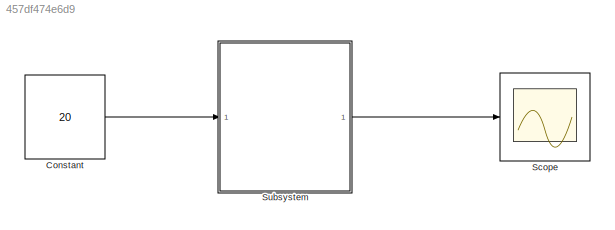
MODEL slx_457df474e6d9
KIND model
CONFIG AbsTol = auto
CONFIG EnableMultiTasking = off
CONFIG FixedStep = auto
CONFIG MaxStep = auto
CONFIG MinStep = auto
CONFIG RelTol = 1e-3
CONFIG SampleTimeConstraint = Unconstrained
CONFIG SolverName = VariableStepAuto
CONFIG StartTime = 0.0
CONFIG StopTime = 10.0
BLOCK [Constant] Constant
  Value = 20
BLOCK [Scope] Scope
  ActiveDisplayYMaximum = 594.46208333333345
  ActiveDisplayYMinimum = -73.45875
  ContainerLayout = {"WindowBounds":[1195,1371,338,757]}
  Floating = off
  GraphicalSettings = {"Style":{"BackgroundColor":[0.12941176470588237,0.12941176470588237,0.12941176470588237],"AxesColor":[0.07058823529411765,0.07058823529411765,0.07058823529411765],"LabelsColor":[0.8509803921568627,0.8509803921568627,0.8509803921568627],"PreserveColors":false,"Visible":[true,true,true,true,true,true,true,true],"LineStyle":["-","-","-","-","-","-","-","-"],"LineWidth":[1.5,1.5,1.5,1.5,1.5,1.5,1.5,1...<+2780ch>
  MultipleDisplayCache = [{"MaxYLimMag":594.46208333333345,"MaxYLimReal":594.46208333333345,"MinYLimMag":0,"MinYLimReal":-73.45875,"PlotAsMagnitudePhase":false,"ShowGrid":true,"ShowLegend":false,"Title":"%<SignalLabel>","YLabel":""}]
  NumInputPorts = 1
  Visible = on
  WasSavedAsWebScope = on
  WindowPosition = [1195.000000,3.000000,340.000000,759.000000,]
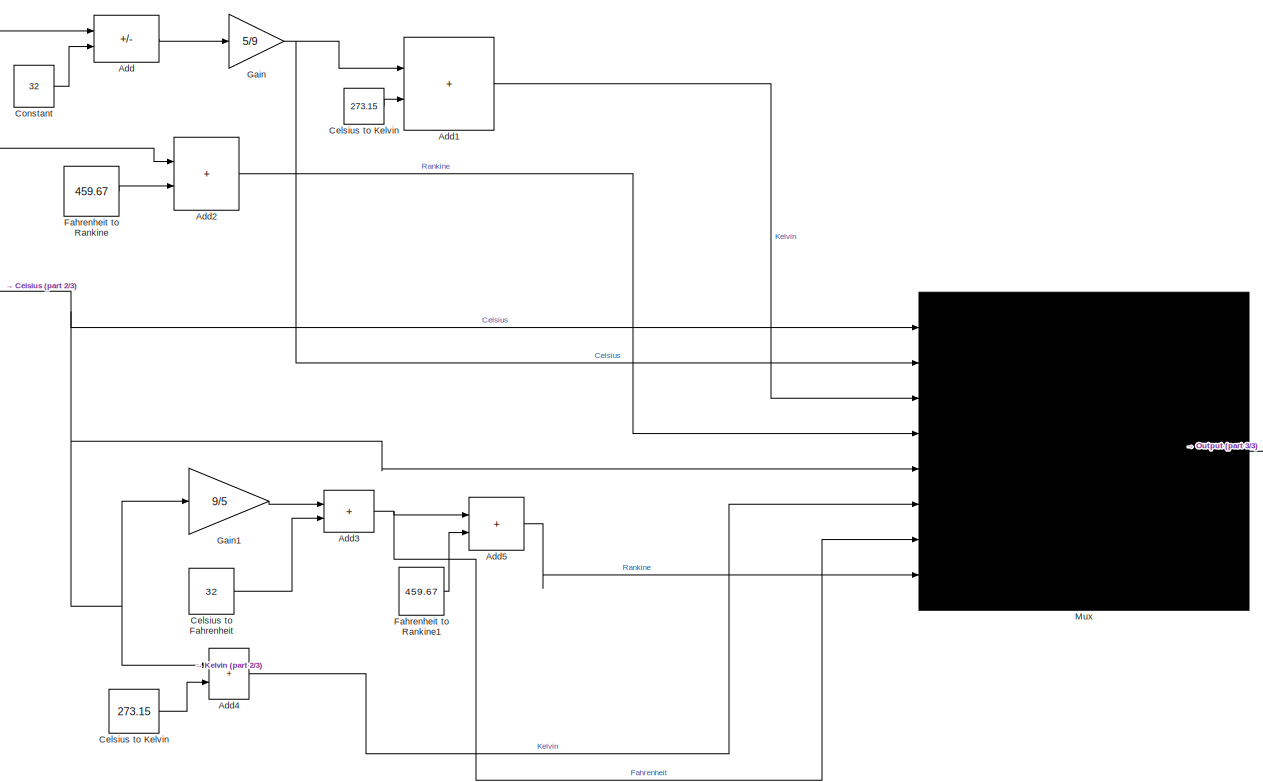
[diagram: Subsystem - part 1/3, center side, full height]
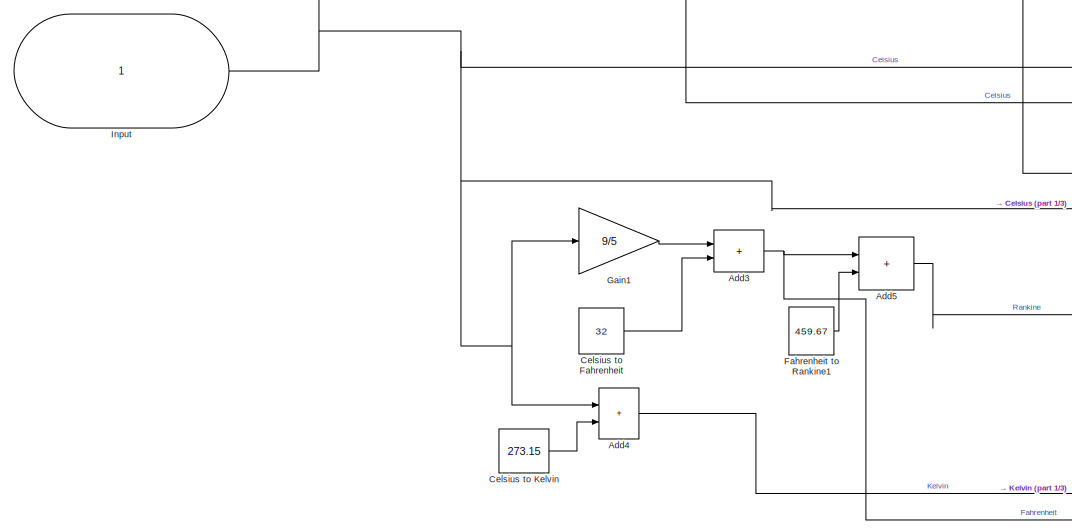
[diagram: Subsystem - part 2/3, middle left region]
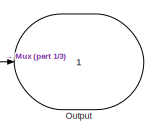
[diagram: Subsystem - part 3/3, middle right region]
BLOCK [SubSystem] Subsystem
BLOCK [Sum] Subsystem/Add
  IconShape = rectangular
  Inputs = +-
BLOCK [Sum] Subsystem/Add1
  IconShape = rectangular
BLOCK [Sum] Subsystem/Add2
  IconShape = rectangular
BLOCK [Sum] Subsystem/Add3
  IconShape = rectangular
BLOCK [Sum] Subsystem/Add4
  IconShape = rectangular
BLOCK [Sum] Subsystem/Add5
  IconShape = rectangular
BLOCK [Constant] Subsystem/Celsius to Fahrenheit
  Value = 32
BLOCK [Constant] Subsystem/Celsius to Kelvin
  Value = 273.15
BLOCK [Constant] Subsystem/Celsius to Kelvin 
  Value = 273.15
BLOCK [Constant] Subsystem/Constant
  Value = 32
BLOCK [Constant] Subsystem/Fahrenheit to Rankine
  Value = 459.67
BLOCK [Constant] Subsystem/Fahrenheit to Rankine1
  Value = 459.67
BLOCK [Gain] Subsystem/Gain
  Gain = 5/9
BLOCK [Gain] Subsystem/Gain1
  Gain = 9/5
BLOCK [Inport] Subsystem/Input
BLOCK [Mux] Subsystem/Mux
  DisplayOption = bar
  Inputs = 8
BLOCK [Outport] Subsystem/Output
LINE Constant:1 -> Subsystem:1
LINE Subsystem/Add1:1 -> Subsystem/Mux:3
LINE Subsystem/Add2:1 -> Subsystem/Mux:4
NET Subsystem/Add3:1 -> Subsystem/Add5:1, Subsystem/Mux:7
LINE Subsystem/Add4:1 -> Subsystem/Mux:6
LINE Subsystem/Add5:1 -> Subsystem/Mux:8
LINE Subsystem/Add:1 -> Subsystem/Gain:1
LINE Subsystem/Celsius to Fahrenheit:1 -> Subsystem/Add3:2
LINE Subsystem/Celsius to Kelvin :1 -> Subsystem/Add4:2
LINE Subsystem/Celsius to Kelvin:1 -> Subsystem/Add1:2
LINE Subsystem/Constant:1 -> Subsystem/Add:2
LINE Subsystem/Fahrenheit to Rankine1:1 -> Subsystem/Add5:2
LINE Subsystem/Fahrenheit to Rankine:1 -> Subsystem/Add2:2
LINE Subsystem/Gain1:1 -> Subsystem/Add3:1
NET Subsystem/Gain:1 -> Subsystem/Add1:1, Subsystem/Mux:2
NET Subsystem/Input:1 -> Subsystem/Add2:1, Subsystem/Add4:1, Subsystem/Add:1, Subsystem/Gain1:1, Subsystem/Mux:1, Subsystem/Mux:5
LINE Subsystem/Mux:1 -> Subsystem/Output:1
LINE Subsystem:1 -> Scope:1
note: NET lines group one-source signal fan-out (src -> all destinations, sorted); 1:1 wires keep LINE
